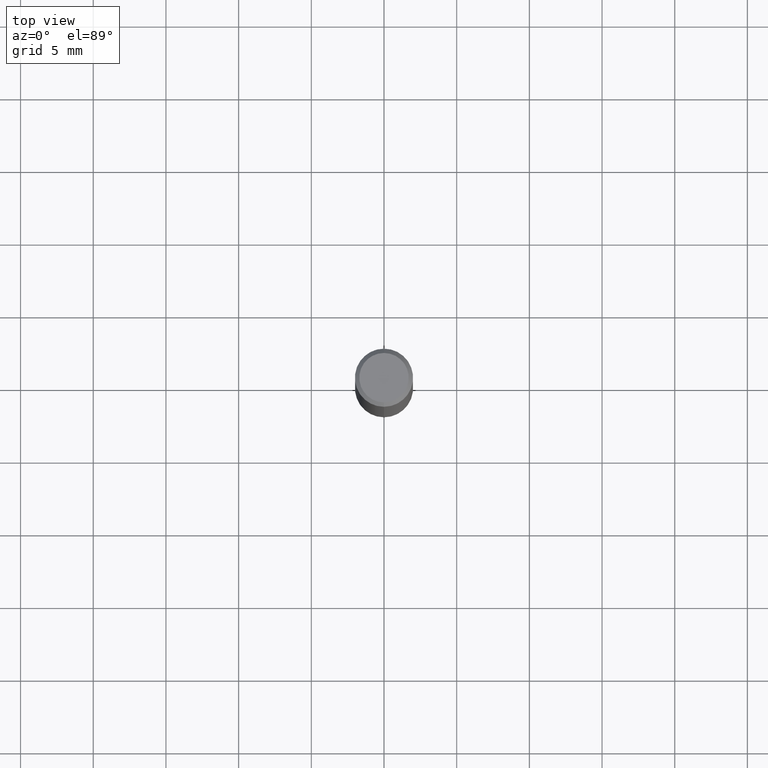
[diagram: clean part render]
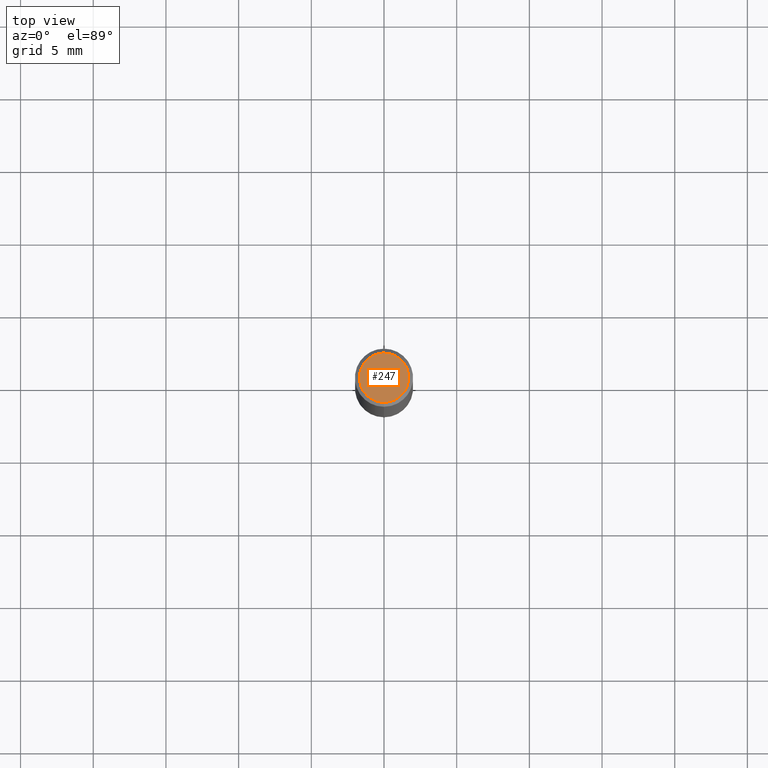
[diagram: same view with one face highlighted and labeled with its STEP entity id]
A machine part, top view. The second image highlights one B-rep face of the part: STEP entity #247.
In plain terms, the highlighted planar face has unit normal (-0, 0, 1).
Its self-contained STEP definition (entity closure, byte-faithful):
#189=VERTEX_POINT('',#428);
#247=ADVANCED_FACE('',(#491),#492,.T.);
#287=VERTEX_POINT('',#543);
#295=EDGE_CURVE('',#189,#287,#551,.T.);
#345=EDGE_CURVE('',#287,#189,#609,.T.);
#428=CARTESIAN_POINT('',(0.0,1.7,0.00999999999999801));
#491=FACE_OUTER_BOUND('',#787,.T.);
#492=PLANE('',#788);
#543=CARTESIAN_POINT('',(2.08183080149804E-016,-1.7,0.00999999999999801));
#551=CIRCLE('',#857,1.7);
#609=CIRCLE('',#928,1.7);
#787=EDGE_LOOP('',(#1072,#1073));
#788=AXIS2_PLACEMENT_3D('',#1074,#1075,#1076);
#857=AXIS2_PLACEMENT_3D('',#1168,#1169,#1170);
#928=AXIS2_PLACEMENT_3D('',#1247,#1248,#1249);
#1072=ORIENTED_EDGE('',*,*,#295,.F.);
#1073=ORIENTED_EDGE('',*,*,#345,.F.);
#1074=CARTESIAN_POINT('',(0.0,0.85,0.00999999999999801));
#1075=DIRECTION('',(-0.0,0.0,1.0));
#1076=DIRECTION('',(0.0,-1.0,0.0));
#1168=CARTESIAN_POINT('',(0.0,0.0,0.00999999999999801));
#1169=DIRECTION('',(0.0,0.0,-1.0));
#1170=DIRECTION('',(0.0,1.0,0.0));
#1247=CARTESIAN_POINT('',(0.0,0.0,0.00999999999999801));
#1248=DIRECTION('',(0.0,0.0,-1.0));
#1249=DIRECTION('',(0.0,1.0,0.0));